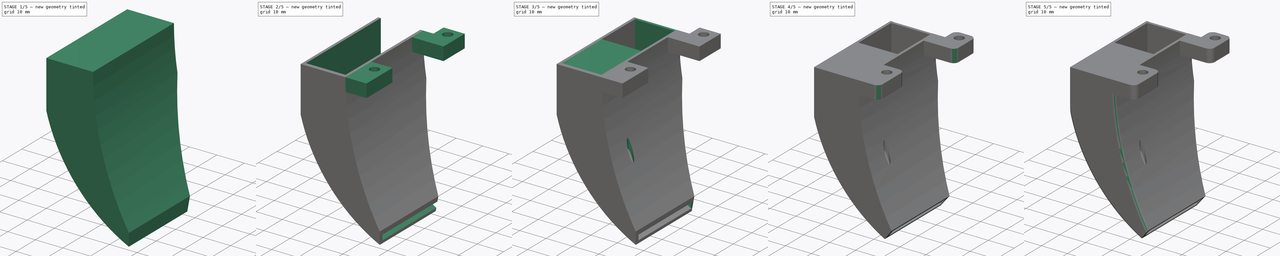
[diagram: build sequence overview — one tinted view per stage of 5, left to right]
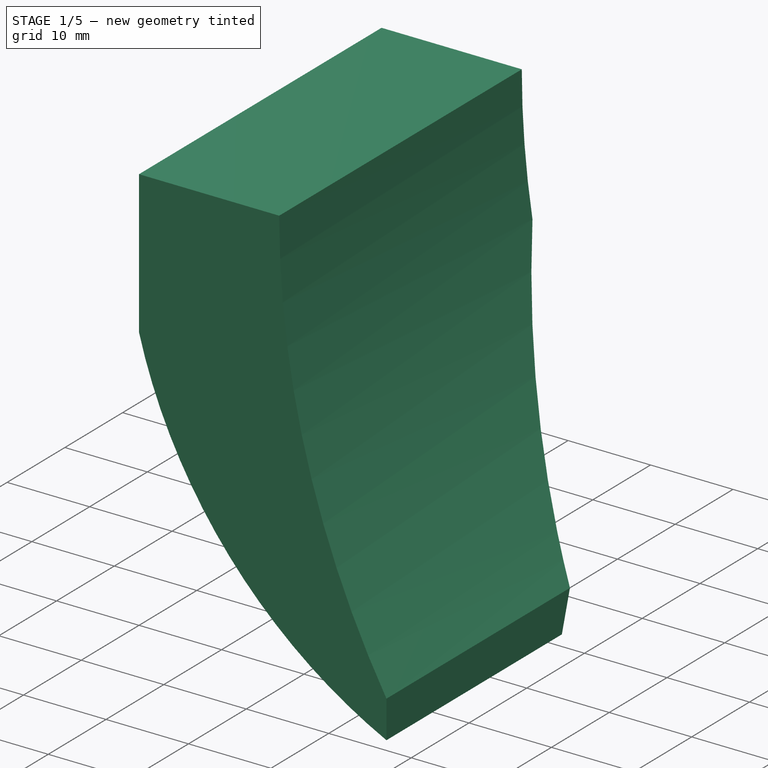
[diagram: stage 1 of 5 — iso view after this stage's code; geometry added in this stage tinted green]
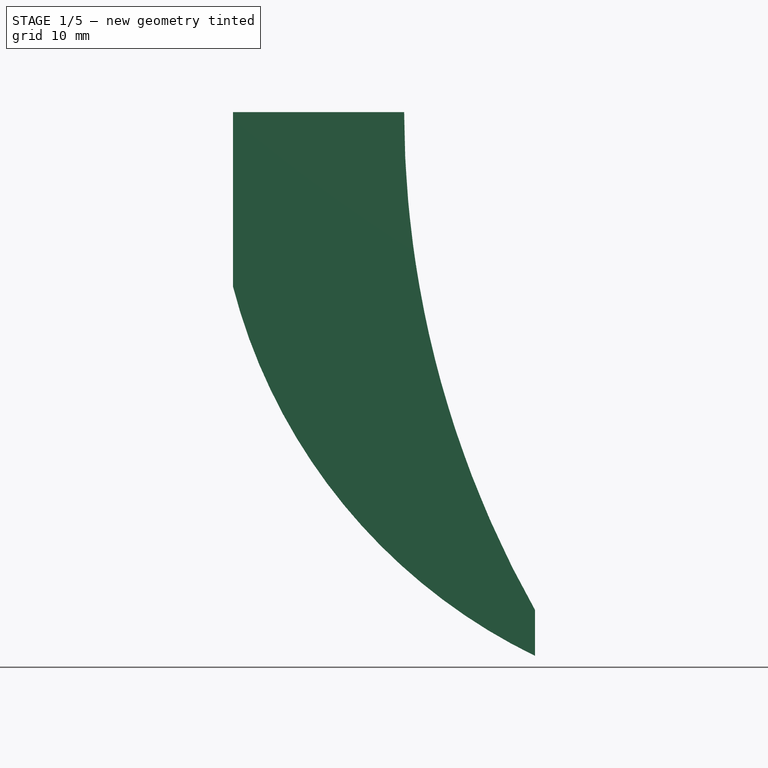
[diagram: stage 1 of 5 — front view after this stage's code; geometry added in this stage tinted green]
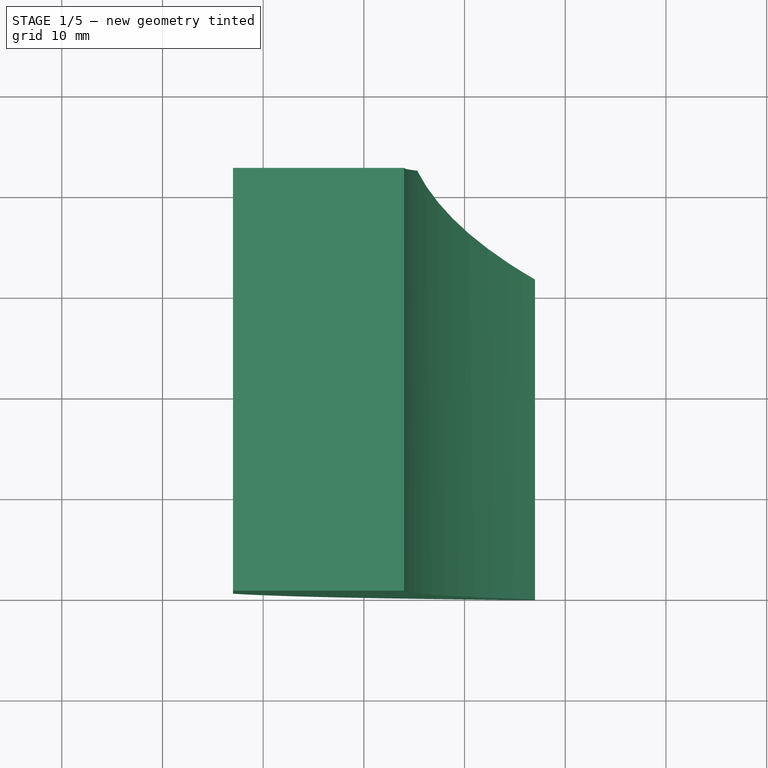
[diagram: stage 1 of 5 — top view after this stage's code; geometry added in this stage tinted green]
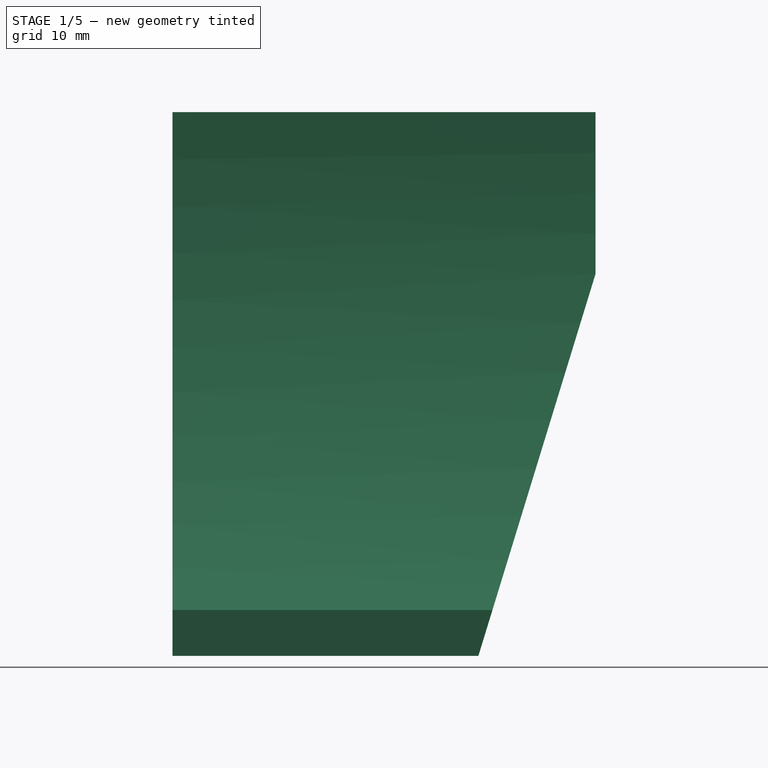
[diagram: stage 1 of 5 — right view after this stage's code; geometry added in this stage tinted green]
FCSTD DOCUMENT  (FreeCAD 0.19R)
Label: FanDuctVolcano
License: All rights reserved
LicenseURL: http://en.wikipedia.org/wiki/All_rights_reserved
objects: Sketcher::SketchObject×16, PartDesign::Pocket×8, PartDesign::Pad×7, PartDesign::Fillet×6, PartDesign::Chamfer×1, PartDesign::Body×1
note: 61 computed .brp shape members not serialized (recipe doc carries the construction recipe); baked Part::Feature solids carry a one-line shape summary decoded from their .brp

FEATURE [Sketcher::SketchObject] Sketch
  FullyConstrained = true
  MapMode = 5
  Support = -> [XY_Plane]
  sketch-geometry (19):
    g0: Circle CenterX=0 CenterY=-40 CenterZ=0 NormalX=0 NormalY=0 NormalZ=1 AngleXU=0 Radius=4.5
    g1: Circle CenterX=-22 CenterY=-40 CenterZ=0 NormalX=0 NormalY=0 NormalZ=1 AngleXU=0 Radius=2.5
    g2: Circle CenterX=-18 CenterY=-6 CenterZ=0 NormalX=0 NormalY=0 NormalZ=1 AngleXU=0 Radius=1.9
    g3: LineSegment StartX=-28 StartY=0 StartZ=0 EndX=0 EndY=0 EndZ=0
    g4: LineSegment StartX=0 StartY=0 StartZ=0 EndX=0 EndY=-50 EndZ=0
    g5: LineSegment StartX=0 StartY=-50 StartZ=0 EndX=-28 EndY=-50 EndZ=0
    g6: LineSegment StartX=-28 StartY=-50 StartZ=0 EndX=-28 EndY=0 EndZ=0
    g7: LineSegment StartX=-43 StartY=-8 StartZ=0 EndX=-28 EndY=-8 EndZ=0
    g8: LineSegment StartX=-28 StartY=-8 StartZ=0 EndX=-28 EndY=-28 EndZ=0
    g9: LineSegment StartX=-28 StartY=-28 StartZ=0 EndX=-43 EndY=-28 EndZ=0
    g10: LineSegment StartX=-43 StartY=-28 StartZ=0 EndX=-43 EndY=-8 EndZ=0
    g11: LineSegment StartX=-43 StartY=-8 StartZ=0 EndX=-13 EndY=-8 EndZ=0
    g12: LineSegment StartX=-13 StartY=-8 StartZ=0 EndX=-13 EndY=-50 EndZ=0
    g13: LineSegment StartX=-13 StartY=-50 StartZ=0 EndX=-43 EndY=-50 EndZ=0
    g14: LineSegment StartX=-43 StartY=-50 StartZ=0 EndX=-43 EndY=-8 EndZ=0
    g15: LineSegment StartX=-6 StartY=-27 StartZ=0 EndX=6 EndY=-27 EndZ=0
    g16: LineSegment StartX=6 StartY=-27 StartZ=0 EndX=6 EndY=-47 EndZ=0
    g17: LineSegment StartX=6 StartY=-47 StartZ=0 EndX=-6 EndY=-47 EndZ=0
    g18: LineSegment StartX=-6 StartY=-47 StartZ=0 EndX=-6 EndY=-27 EndZ=0
  constraints (55):
    c: Diameter(g0) = 9
    c: PointOnObject(g0,g-2)
    c: DistanceY(g0) = -40
    c: Diameter(g1) = 5
    c: DistanceX(g1) = -22
    c: DistanceY(g1) = -40
    c: Diameter(g2) = 3.8
    c: DistanceY(g2) = -6
    c: DistanceX(g2) = -18
    c: Coincident(g3,g4)
    c: Coincident(g4,g5)
    c: Coincident(g5,g6)
    c: Coincident(g6,g3)
    c: Horizontal(g3)
    c: Horizontal(g5)
    c: Vertical(g4)
    c: Vertical(g6)
    c: PointOnObject(g3,g-1)
    c: PointOnObject(g4,g-2)
    c: DistanceX(g3) = -28
    c: DistanceY(g4) = -50
    c: Coincident(g7,g8)
    c: Coincident(g8,g9)
    c: Coincident(g9,g10)
    c: Coincident(g10,g7)
    c: Horizontal(g7)
    c: Horizontal(g9)
    c: Vertical(g8)
    c: Vertical(g10)
    c: DistanceY(g7) = -8
    c: DistanceY(g8) = -28
    c: DistanceX(g7) = -43
    c: DistanceX(g7) = -28
    c: Coincident(g11,g12)
    c: Coincident(g12,g13)
    c: Coincident(g13,g14)
    c: Coincident(g14,g11)
    c: Horizontal(g11)
    c: Horizontal(g13)
    c: Vertical(g12)
    c: Vertical(g14)
    c: Coincident(g11,g7)
    c: PointOnObject(g12,g5)
    c: Coincident(g15,g16)
    c: Coincident(g16,g17)
    c: Coincident(g17,g18)
    c: Coincident(g18,g15)
    c: Horizontal(g15)
    c: Vertical(g16)
    c: Vertical(g18)
    c: Symmetric(g16,g17,g-2)
    c: Distance(g17) = 12
    c: Distance(g16) = 20
    c: DistanceY(g16,g0) = 7
    c: Distance(g15,g12) = 7
FEATURE [PartDesign::Pad] Pad
  Direction = (1,1,1)
  Length = 54
  Length2 = 100
  Profile = -> Sketch
  Reversed = true
  Type = 0
FEATURE [Sketcher::SketchObject] Sketch001
  ExternalGeometry = -> [Pad]
  FullyConstrained = true
  MapMode = 5
  Placement = pos=(0,-50,0) rot=(1,0,0;1.5708rad)
  Support = -> [Pad]
  sketch-geometry (6):
    g0: ArcOfCircle CenterX=11.7156 CenterY=-3.17874 CenterZ=0 NormalX=0 NormalY=0 NormalZ=1 AngleXU=0 Radius=56.5125 StartAngle=3.39444 EndAngle=4.25974
    g1: LineSegment StartX=-13 StartY=-54 StartZ=0 EndX=-82.3273 EndY=-71.6955 EndZ=0
    g2: LineSegment StartX=0 StartY=-55 StartZ=0 EndX=4.5 EndY=-50.8966 EndZ=0
    g3: LineSegment StartX=4.5 StartY=-50.8966 StartZ=0 EndX=-4.5 EndY=-50.8966 EndZ=0
    g4: LineSegment StartX=-4.5 StartY=-50.8966 StartZ=0 EndX=0 EndY=-55 EndZ=0
    g5: LineSegment StartX=-82.3273 StartY=-71.6955 StartZ=0 EndX=-43 EndY=-17.3161 EndZ=0
  constraints (17):
    c: Coincident(g0,g-4)
    c: Coincident(g1,g0)
    c: PointOnObject(g2,g-2)
    c: Coincident(g2,g3)
    c: Coincident(g3,g4)
    c: Coincident(g4,g2)
    c: Symmetric(g2,g3,g-2)
    c: Distance(g3) = 9
    c: Distance(g2) = 6.09
    c: DistanceY(g2) = -55
    c: Coincident(g5,g1)
    c: Coincident(g5,g0)
    c: PointOnObject(g0,g-3)
    c: DistanceX(g0) = 11.7156
    c: DistanceY(g0) = -3.17874
    c: Distance(g5) = 67.11
    c: Distance(g1) = 71.55
FEATURE [PartDesign::Pocket] Pocket
  BaseFeature = -> Pad
  Length = 5
  Length2 = 100
  Profile = -> Sketch001
  Type = 1
FEATURE [Sketcher::SketchObject] Sketch002
  FullyConstrained = true
  MapMode = 5
  Placement = pos=(-13,0,0) rot=(0.57735,0.57735,0.57735;2.0944rad)
  Support = -> [Pocket]
  sketch-geometry (8):
    g0: LineSegment StartX=-50 StartY=-31 StartZ=0 EndX=-30 EndY=-31 EndZ=0
    g1: LineSegment StartX=-30 StartY=-31 StartZ=0 EndX=-30 EndY=-43 EndZ=0
    g2: LineSegment StartX=-30 StartY=-43 StartZ=0 EndX=-50 EndY=-43 EndZ=0
    g3: LineSegment StartX=-50 StartY=-43 StartZ=0 EndX=-50 EndY=-31 EndZ=0
    g4: GeomPoint X=-40 Y=-55 Z=0
    g5: LineSegment StartX=0 StartY=10 StartZ=0 EndX=-23 EndY=-65 EndZ=0
    g6: LineSegment StartX=0 StartY=10 StartZ=0 EndX=20.1489 EndY=-57.2463 EndZ=0
    g7: LineSegment StartX=-23 StartY=-65 StartZ=0 EndX=20.1489 EndY=-57.2463 EndZ=0
  constraints (23):
    c: Coincident(g0,g1)
    c: Coincident(g1,g2)
    c: Coincident(g2,g3)
    c: Coincident(g3,g0)
    c: Horizontal(g0)
    c: Horizontal(g2)
    c: Vertical(g1)
    c: Vertical(g3)
    c: Distance(g0) = 20
    c: Distance(g1) = 12
    c: DistanceX(g1) = -30
    c: DistanceY(g1) = -43
    c: DistanceY(g4) = -55
    c: DistanceX(g4) = -40
    c: Coincident(g6,g5)
    c: Coincident(g7,g5)
    c: Coincident(g7,g6)
    c: PointOnObject(g5,g-2)
    c: DistanceY(g5) = 10
    c: DistanceX(g5) = -23
    c: DistanceY(g5) = -65
    c: Distance(g7) = 43.84
    c: Distance(g6) = 70.2
FEATURE [Sketcher::SketchObject] Sketch014
  FullyConstrained = false
  MapMode = 5
  Placement = pos=(-13,0,0) rot=(0.57735,0.57735,0.57735;2.0944rad)
  sketch-geometry (6):
    g0: LineSegment StartX=-52.8608 StartY=-52.5107 StartZ=0 EndX=-15.8278 EndY=-52.5107 EndZ=0
    g1: LineSegment StartX=-15.8278 StartY=-52.5107 StartZ=0 EndX=-15.8278 EndY=-61.1343 EndZ=0
    g2: LineSegment StartX=-15.8278 StartY=-61.1343 StartZ=0 EndX=-52.8608 EndY=-61.1343 EndZ=0
    g3: LineSegment StartX=-52.8608 StartY=-61.1343 StartZ=0 EndX=-52.8608 EndY=-52.5107 EndZ=0
    g4: LineSegment StartX=-20.0909 StartY=-51.1029 StartZ=0 EndX=-20.0909 EndY=-52.1029 EndZ=0
    g5: LineSegment StartX=-47 StartY=-52.1029 StartZ=0 EndX=-47 EndY=-51.1029 EndZ=0
  constraints (11):
    c: Coincident(g0,g1)
    c: Coincident(g1,g2)
    c: Coincident(g2,g3)
    c: Coincident(g3,g0)
    c: Horizontal(g0)
    c: Horizontal(g2)
    c: Vertical(g1)
    c: Vertical(g3)
    c: Vertical(g4)
    c: Vertical(g5)
    c: Distance(g4) = 1
FEATURE [PartDesign::Pocket] Pocket001
  BaseFeature = -> Pocket
  Length = 5
  Length2 = 100
  Profile = -> Sketch002
  Type = 1
FEATURE [Sketcher::SketchObject] Sketch004
  FullyConstrained = true
  MapMode = 5
  Placement = pos=(0,-50,0) rot=(1,0,0;1.5708rad)
  Support = -> [Pocket001]
  sketch-geometry (3):
    g0: ArcOfCircle CenterX=74.53 CenterY=0 CenterZ=0 NormalX=0 NormalY=0 NormalZ=1 AngleXU=0 Radius=100.53 StartAngle=3.14159 EndAngle=4.15685
    g1: LineSegment StartX=-26 StartY=1.23e-14 StartZ=0 EndX=74.53 EndY=0 EndZ=0
    g2: LineSegment StartX=21.51 StartY=-85.4117 StartZ=0 EndX=74.53 EndY=0 EndZ=0
  constraints (9):
    c: PointOnObject(g0,g-1)
    c: PointOnObject(g0,g-1)
    c: DistanceX(g0) = -26
    c: Coincident(g1,g0)
    c: Coincident(g1,g0)
    c: Coincident(g2,g0)
    c: Coincident(g2,g0)
    c: DistanceX(g0) = 21.51
    c: DistanceX(g0) = 74.53
FEATURE [PartDesign::Pocket] Pocket002
  BaseFeature = -> Pocket001
  Length = 5
  Length2 = 100
  Profile = -> Sketch004
  Type = 1
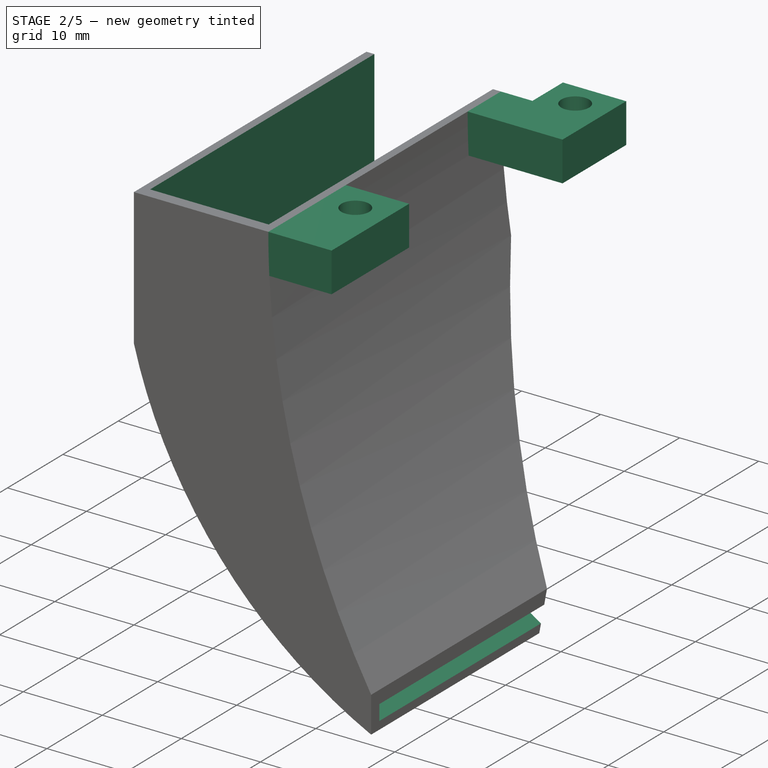
[diagram: stage 2 of 5 — iso view after this stage's code; geometry added in this stage tinted green]
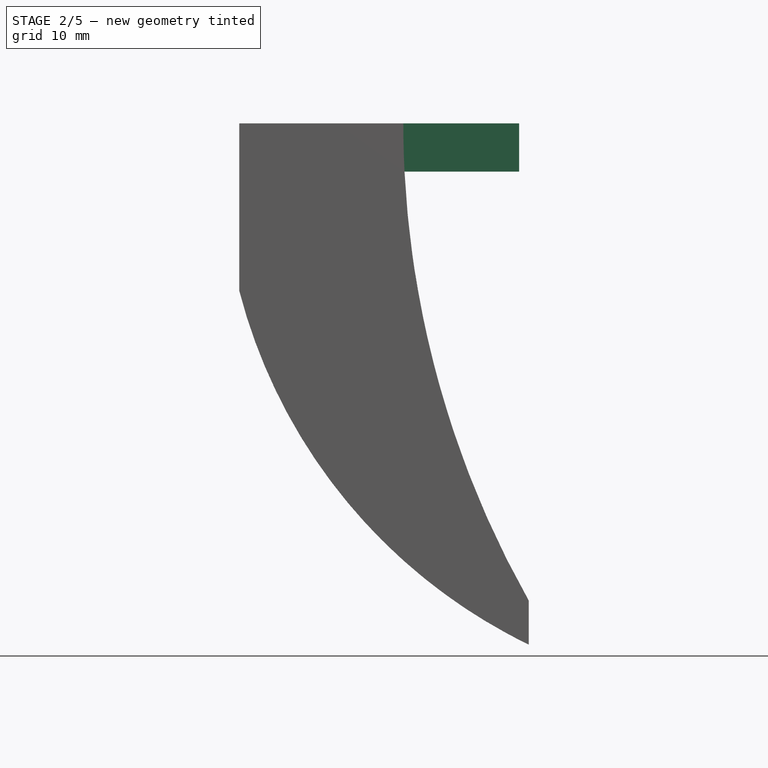
[diagram: stage 2 of 5 — front view after this stage's code; geometry added in this stage tinted green]
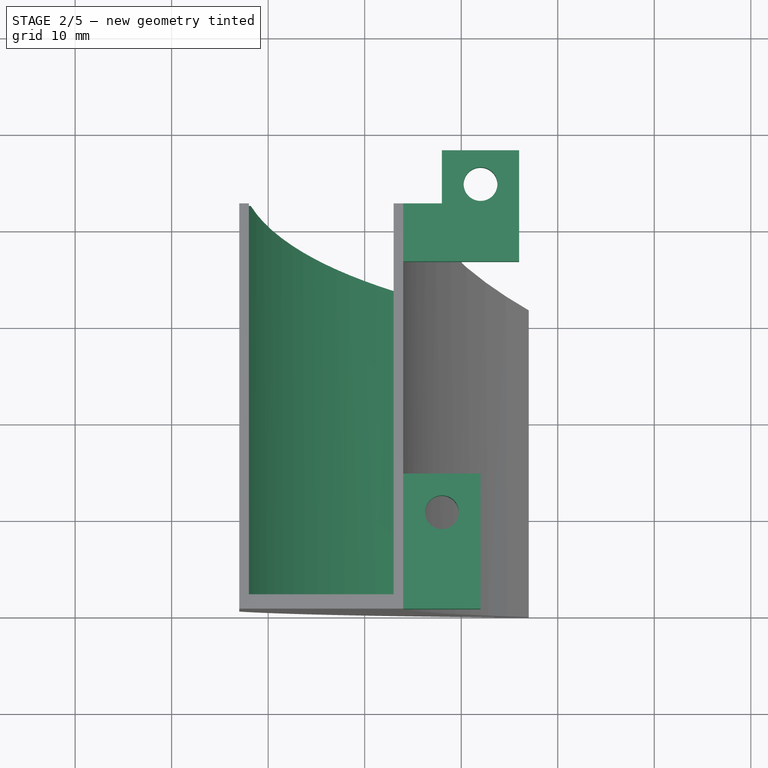
[diagram: stage 2 of 5 — top view after this stage's code; geometry added in this stage tinted green]
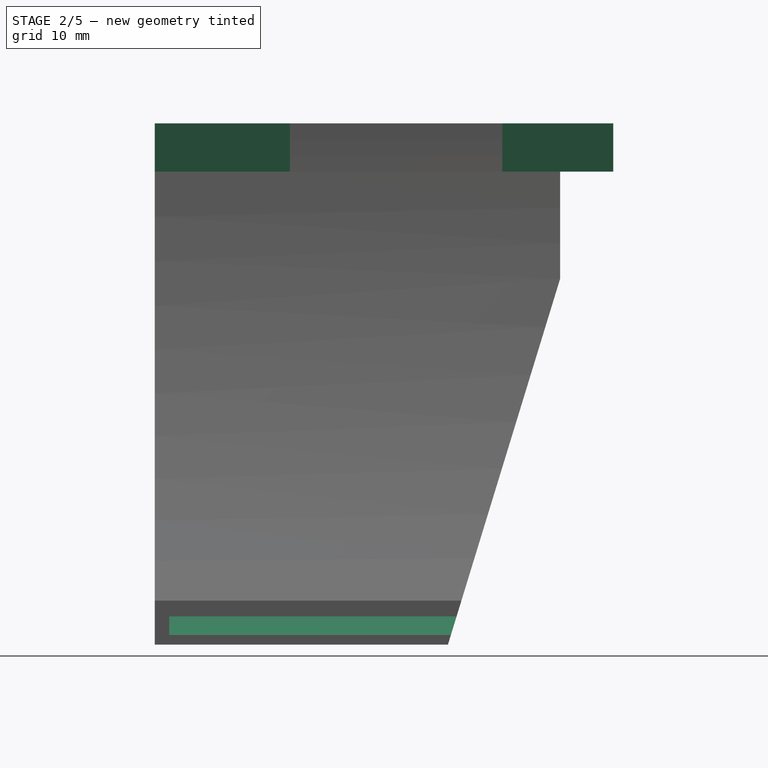
[diagram: stage 2 of 5 — right view after this stage's code; geometry added in this stage tinted green]
FEATURE [Sketcher::SketchObject] Sketch003
  FullyConstrained = false
  MapMode = 5
  Placement = pos=(0,-8,0) rot=(0,0.707107,0.707107;3.14159rad)
  Support = -> [Pocket002]
  sketch-geometry (8):
    g0: ArcOfCircle CenterX=-9.41574 CenterY=-5.83036 CenterZ=0 NormalX=0 NormalY=0 NormalZ=1 AngleXU=0 Radius=52.227 StartAngle=4.89367 EndAngle=6.1067
    g1: LineSegment StartX=42 StartY=3 StartZ=0 EndX=42 EndY=-15 EndZ=0
    g2: LineSegment StartX=42 StartY=3 StartZ=0 EndX=27 EndY=3 EndZ=0
    g3: LineSegment StartX=27 StartY=3 StartZ=0 EndX=27 EndY=-2.44e-14 EndZ=0
    g4: ArcOfCircle CenterX=-73.1763 CenterY=0 CenterZ=0 NormalX=0 NormalY=0 NormalZ=1 AngleXU=0 Radius=100.176 StartAngle=5.53141 EndAngle=6.28319
    g5: ArcOfCircle CenterX=-73.1763 CenterY=0 CenterZ=0 NormalX=0 NormalY=0 NormalZ=1 AngleXU=0 Radius=100.176 StartAngle=5.73709 EndAngle=6.28319
    g6: ArcOfCircle CenterX=-9.41574 CenterY=-5.83036 CenterZ=0 NormalX=0 NormalY=0 NormalZ=1 AngleXU=0 Radius=52.227 StartAngle=5.14394 EndAngle=6.1067
    g7: LineSegment StartX=12.43 StartY=-52.0274 StartZ=0 EndX=12.43 EndY=-53.269 EndZ=0
  constraints (23):
    c: PointOnObject(g0,g-2)
    c: Coincident(g1,g0)
    c: Vertical(g1)
    c: DistanceX(g1) = 42
    c: DistanceY(g1) = 3
    c: Coincident(g2,g1)
    c: Horizontal(g2)
    c: Coincident(g3,g2)
    c: Vertical(g3)
    c: DistanceX(g2) = 27
    c: Coincident(g4,g3)
    c: PointOnObject(g3,g-1)
    c: PointOnObject(g4,g-2)
    c: PointOnObject(g4,g-1)
    c: Coincident(g5,g4)
    c: Coincident(g5,g3)
    c: Coincident(g6,g0)
    c: Coincident(g6,g1)
    c: Coincident(g7,g5)
    c: Coincident(g7,g6)
    c: Vertical(g7)
    c: DistanceX(g5) = 12.43
    c: Distance(g1) = 18
FEATURE [PartDesign::Pocket] Pocket003
  BaseFeature = -> Pocket002
  Length = 40.5
  Length2 = 100
  Profile = -> Sketch003
  Type = 0
FEATURE [Sketcher::SketchObject] Sketch005
  FullyConstrained = false
  MapMode = 5
  Placement = pos=(0,-8,0) rot=(0,0.707107,0.707107;3.14159rad)
  Support = -> [Pocket003]
  sketch-geometry (4):
    g0: LineSegment StartX=14 StartY=0 StartZ=0 EndX=26.8847 EndY=0 EndZ=0
    g1: LineSegment StartX=26.8847 StartY=0 StartZ=0 EndX=26.8847 EndY=-5 EndZ=0
    g2: LineSegment StartX=26.8847 StartY=-5 StartZ=0 EndX=14 EndY=-5 EndZ=0
    g3: LineSegment StartX=14 StartY=-5 StartZ=0 EndX=14 EndY=0 EndZ=0
  constraints (11):
    c: Coincident(g0,g1)
    c: Coincident(g1,g2)
    c: Coincident(g2,g3)
    c: Coincident(g3,g0)
    c: Horizontal(g0)
    c: Horizontal(g2)
    c: Vertical(g1)
    c: Vertical(g3)
    c: PointOnObject(g0,g-1)
    c: DistanceX(g0) = 14
    c: Distance(g3) = 5
FEATURE [PartDesign::Pad] Pad001
  BaseFeature = -> Pocket003
  Direction = (1,1,1)
  Length = 6
  Length2 = 100
  Profile = -> Sketch005
  Reversed = true
  Type = 0
FEATURE [Sketcher::SketchObject] Sketch006
  FullyConstrained = true
  MapMode = 5
  Placement = pos=(0,-8,2.8e-15) rot=(0,0.707107,0.707107;3.14159rad)
  Support = -> [Pad001]
  sketch-geometry (4):
    g0: LineSegment StartX=14 StartY=0 StartZ=0 EndX=22 EndY=0 EndZ=0
    g1: LineSegment StartX=22 StartY=0 StartZ=0 EndX=22 EndY=-5 EndZ=0
    g2: LineSegment StartX=22 StartY=-5 StartZ=0 EndX=14 EndY=-5 EndZ=0
    g3: LineSegment StartX=14 StartY=-5 StartZ=0 EndX=14 EndY=0 EndZ=0
  constraints (12):
    c: Coincident(g0,g1)
    c: Coincident(g1,g2)
    c: Coincident(g2,g3)
    c: Coincident(g3,g0)
    c: Horizontal(g0)
    c: Horizontal(g2)
    c: Vertical(g1)
    c: Vertical(g3)
    c: PointOnObject(g0,g-1)
    c: DistanceX(g0) = 14
    c: Distance(g3) = 5
    c: Distance(g0) = 8
FEATURE [PartDesign::Pad] Pad002
  BaseFeature = -> Pad001
  Direction = (1,1,1)
  Length = 5.5
  Length2 = 100
  Profile = -> Sketch006
  Type = 0
FEATURE [Sketcher::SketchObject] Sketch007
  FullyConstrained = true
  MapMode = 5
  Placement = pos=(0,-50,0) rot=(1,0,0;1.5708rad)
  Support = -> [Pad002]
  sketch-geometry (4):
    g0: LineSegment StartX=-27 StartY=0 StartZ=0 EndX=-18 EndY=0 EndZ=0
    g1: LineSegment StartX=-18 StartY=0 StartZ=0 EndX=-18 EndY=-5 EndZ=0
    g2: LineSegment StartX=-18 StartY=-5 StartZ=0 EndX=-27 EndY=-5 EndZ=0
    g3: LineSegment StartX=-27 StartY=-5 StartZ=0 EndX=-27 EndY=0 EndZ=0
  constraints (12):
    c: Coincident(g0,g1)
    c: Coincident(g1,g2)
    c: Coincident(g2,g3)
    c: Coincident(g3,g0)
    c: Horizontal(g0)
    c: Horizontal(g2)
    c: Vertical(g1)
    c: Vertical(g3)
    c: DistanceX(g0) = -18
    c: PointOnObject(g0,g-1)
    c: Distance(g1) = 5
    c: Distance(g0) = 9
FEATURE [PartDesign::Pad] Pad003
  BaseFeature = -> Pad002
  Direction = (1,1,1)
  Length = 14
  Length2 = 100
  Profile = -> Sketch007
  Reversed = true
  Type = 0
FEATURE [Sketcher::SketchObject] Sketch009
  FullyConstrained = true
  MapMode = 5
  Placement = pos=(0,0,-1.11e-14) rot=(0,0,1;0rad)
  Support = -> [Pad003]
  sketch-geometry (2):
    g0: Circle CenterX=-18 CenterY=-6 CenterZ=0 NormalX=0 NormalY=0 NormalZ=1 AngleXU=0 Radius=1.75
    g1: Circle CenterX=-22 CenterY=-40 CenterZ=0 NormalX=0 NormalY=0 NormalZ=1 AngleXU=0 Radius=1.75
  constraints (6):
    c: Diameter(g1) = 3.5
    c: Equal(g1,g0)
    c: DistanceY(g1) = -40
    c: DistanceX(g1) = -22
    c: DistanceY(g0) = -6
    c: DistanceX(g0) = -18
FEATURE [PartDesign::Pocket] Pocket004
  BaseFeature = -> Pad003
  Length = 6
  Length2 = 100
  Profile = -> Sketch009
  Type = 0
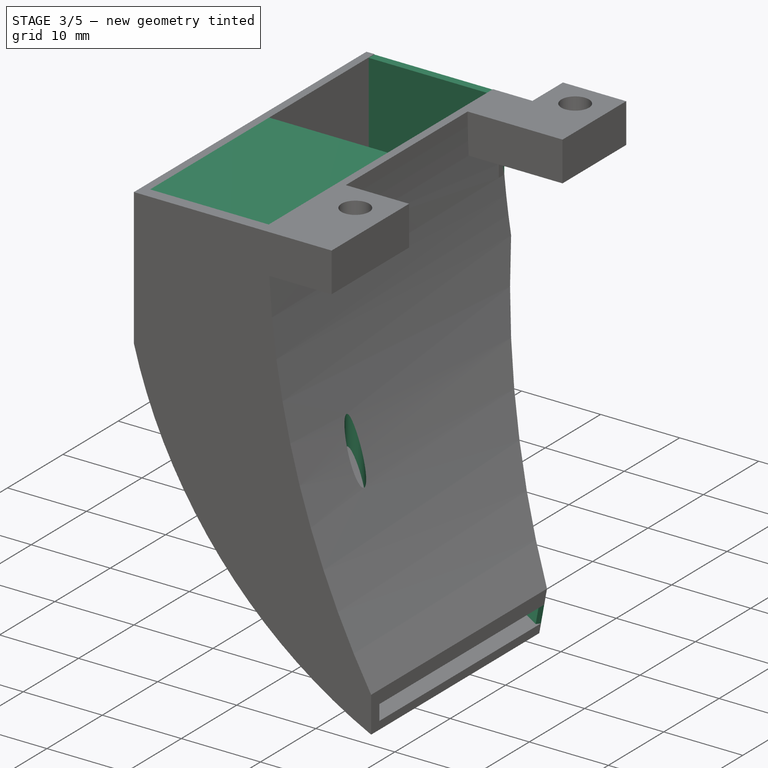
[diagram: stage 3 of 5 — iso view after this stage's code; geometry added in this stage tinted green]
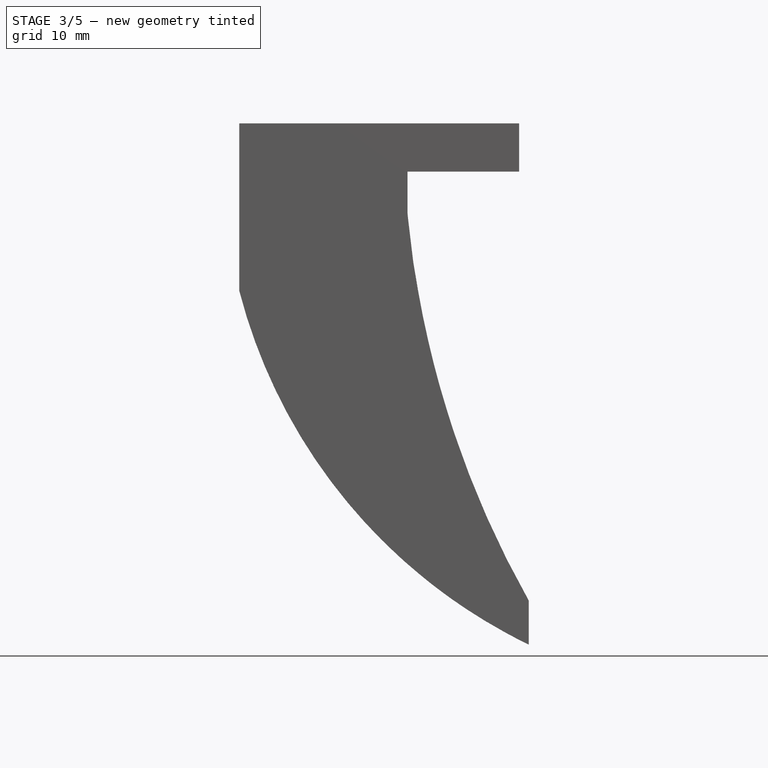
[diagram: stage 3 of 5 — front view after this stage's code; geometry added in this stage tinted green]
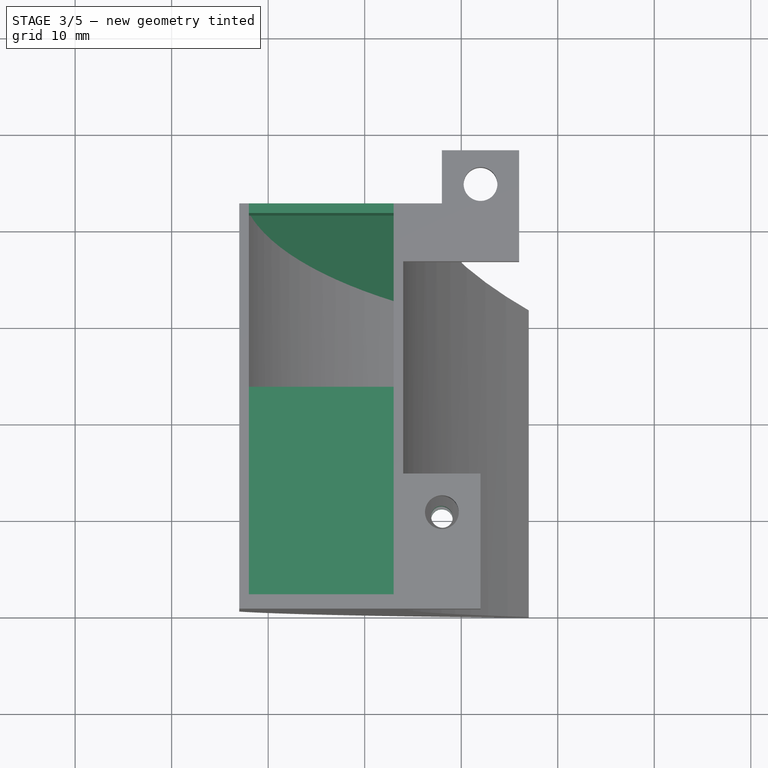
[diagram: stage 3 of 5 — top view after this stage's code; geometry added in this stage tinted green]
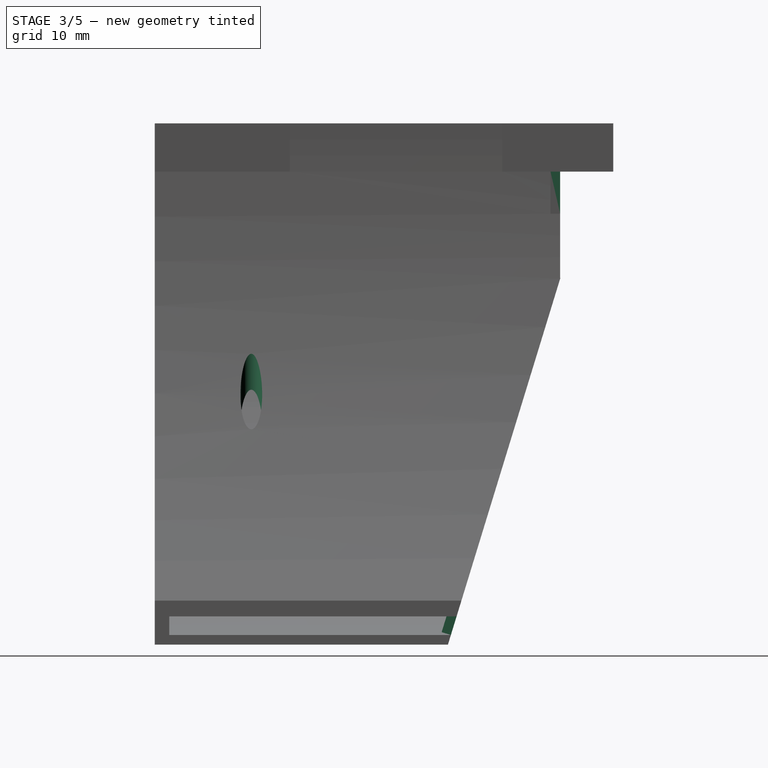
[diagram: stage 3 of 5 — right view after this stage's code; geometry added in this stage tinted green]
FEATURE [Sketcher::SketchObject] Sketch010
  FullyConstrained = false
  MapMode = 5
  Support = -> [Pocket004]
  sketch-geometry (4):
    g0: LineSegment StartX=-43 StartY=-27 StartZ=0 EndX=-26.8847 EndY=-27 EndZ=0
    g1: LineSegment StartX=-26.8847 StartY=-27 StartZ=0 EndX=-26.8847 EndY=-50 EndZ=0
    g2: LineSegment StartX=-26.8847 StartY=-50 StartZ=0 EndX=-43 EndY=-50 EndZ=0
    g3: LineSegment StartX=-43 StartY=-50 StartZ=0 EndX=-43 EndY=-27 EndZ=0
  constraints (7):
    c: Coincident(g1,g2)
    c: Coincident(g2,g3)
    c: Coincident(g3,g0)
    c: Horizontal(g0)
    c: Horizontal(g2)
    c: Vertical(g1)
    c: Coincident(g1,g0)
FEATURE [PartDesign::Pad] Pad004
  BaseFeature = -> Pocket004
  Direction = (1,1,1)
  Length = 1
  Length2 = 100
  Profile = -> Sketch010
  Reversed = true
  Type = 0
FEATURE [Sketcher::SketchObject] Sketch011
  FullyConstrained = false
  MapMode = 5
  Placement = pos=(0,-8,0) rot=(0,0.707107,0.707107;3.14159rad)
  Support = -> [Pad004]
  sketch-geometry (4):
    g0: LineSegment StartX=25.5627 StartY=-0.05258 StartZ=0 EndX=42.2216 EndY=-0.05258 EndZ=0
    g1: LineSegment StartX=42.2216 StartY=-0.05258 StartZ=0 EndX=42.2216 EndY=-16.1242 EndZ=0
    g2: LineSegment StartX=42.2216 StartY=-16.1242 StartZ=0 EndX=25.5627 EndY=-16.1242 EndZ=0
    g3: LineSegment StartX=25.5627 StartY=-16.1242 StartZ=0 EndX=25.5627 EndY=-0.05258 EndZ=0
  constraints (8):
    c: Coincident(g0,g1)
    c: Coincident(g1,g2)
    c: Coincident(g2,g3)
    c: Coincident(g3,g0)
    c: Horizontal(g0)
    c: Horizontal(g2)
    c: Vertical(g1)
    c: Vertical(g3)
FEATURE [PartDesign::Pad] Pad005
  BaseFeature = -> Pad004
  Direction = (1,1,1)
  Length = 1
  Length2 = 100
  Profile = -> Sketch011
  Reversed = true
  Type = 0
FEATURE [Sketcher::SketchObject] Sketch013
  ExternalGeometry = -> [Pad005]
  FullyConstrained = true
  MapMode = 5
  Placement = pos=(0,-2.80305,0.859604) rot=(0,0.804111,0.594479;3.14159rad)
  Support = -> [Pad005]
  sketch-geometry (4):
    g0: LineSegment StartX=42.3335 StartY=-17.6579 StartZ=0 EndX=25.3192 EndY=-17.6579 EndZ=0
    g1: ArcOfCircle CenterX=-10.1637 CenterY=-8.30848 CenterZ=0 NormalX=0 NormalY=0 NormalZ=1 AngleXU=0 Radius=53.3233 StartAngle=5.16176 EndAngle=6.10694
    g2: ArcOfCircle CenterX=-83.9739 CenterY=-1.34081 CenterZ=0 NormalX=0 NormalY=0 NormalZ=1 AngleXU=0 Radius=110.504 StartAngle=5.78313 EndAngle=6.13498
    g3: LineSegment StartX=13 StartY=-54.3247 StartZ=0 EndX=13 EndY=-56.3377 EndZ=0
  constraints (12):
    c: Horizontal(g0)
    c: Coincident(g1,g0)
    c: Coincident(g2,g0)
    c: Coincident(g3,g2)
    c: Coincident(g3,g1)
    c: DistanceX(g0) = 42.3335
    c: DistanceY(g0) = -17.6579
    c: DistanceX(g0) = 25.3192
    c: Coincident(g2,g-4)
    c: Coincident(g1,g-5)
    c: DistanceX(g2) = -83.9739
    c: DistanceX(g1) = -10.1637
FEATURE [PartDesign::Pad] Pad006
  BaseFeature = -> Pad005
  Direction = (1,1,1)
  Length = 1
  Length2 = 100
  Profile = -> Sketch013
  Reversed = true
  Type = 0
FEATURE [Sketcher::SketchObject] Sketch015
  FullyConstrained = false
  MapMode = 5
  Placement = pos=(0,0,-1.11e-14) rot=(0,0,1;0rad)
  Support = -> [Pad006]
  sketch-geometry (1):
    g0: Circle CenterX=-22 CenterY=-40 CenterZ=0 NormalX=0 NormalY=0 NormalZ=1 AngleXU=0 Radius=1.125
  constraints (1):
    c: Diameter(g0) = 2.25
FEATURE [PartDesign::Pocket] Pocket005
  BaseFeature = -> Pad006
  Length = 5
  Length2 = 100
  Profile = -> Sketch015
  Type = 1
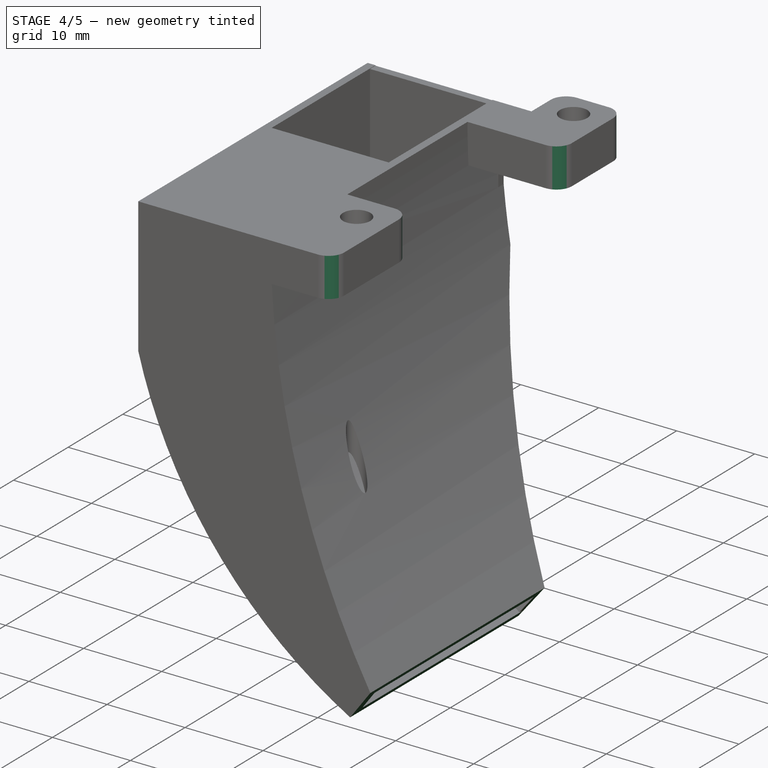
[diagram: stage 4 of 5 — iso view after this stage's code; geometry added in this stage tinted green]
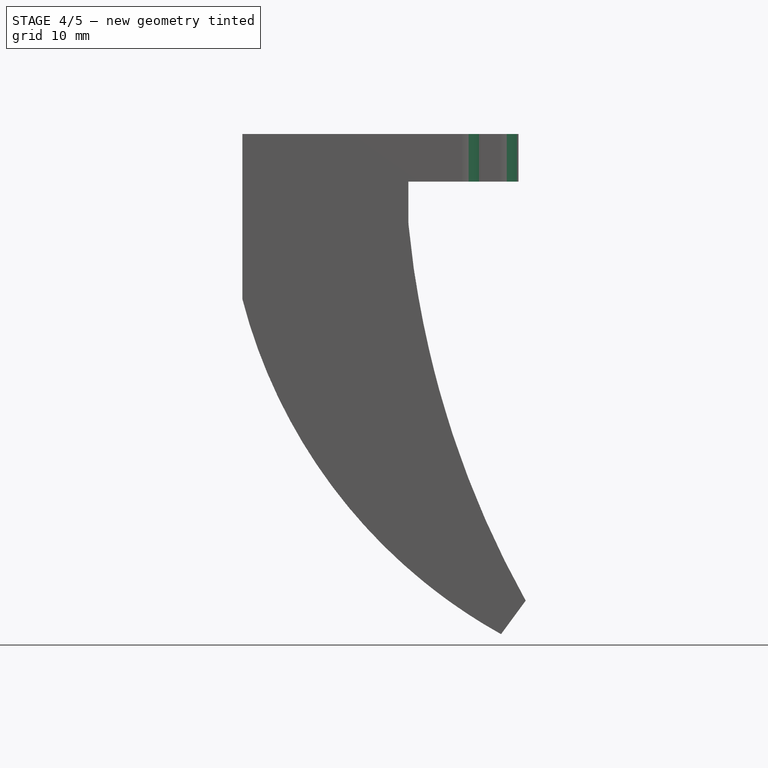
[diagram: stage 4 of 5 — front view after this stage's code; geometry added in this stage tinted green]
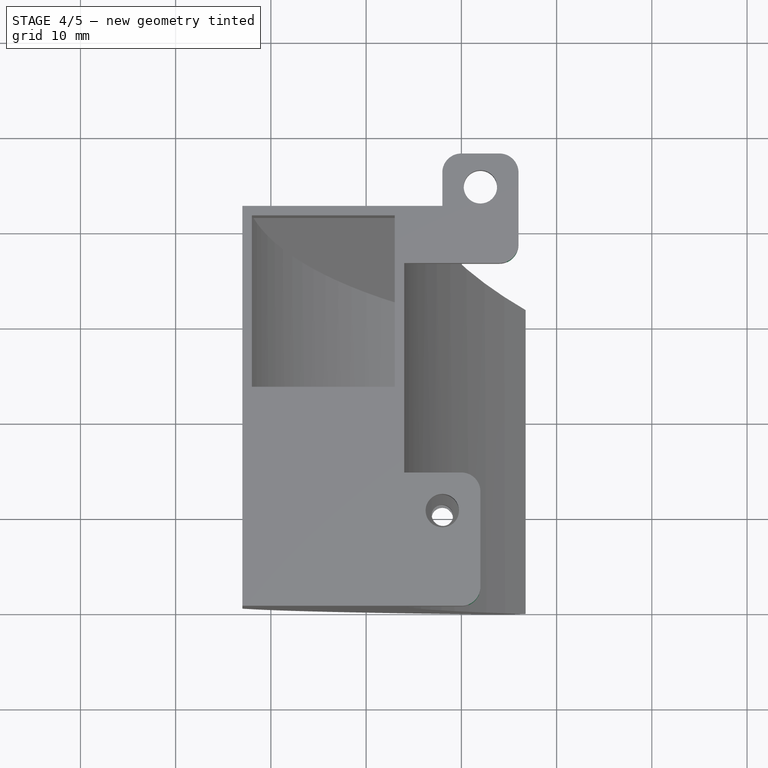
[diagram: stage 4 of 5 — top view after this stage's code; geometry added in this stage tinted green]
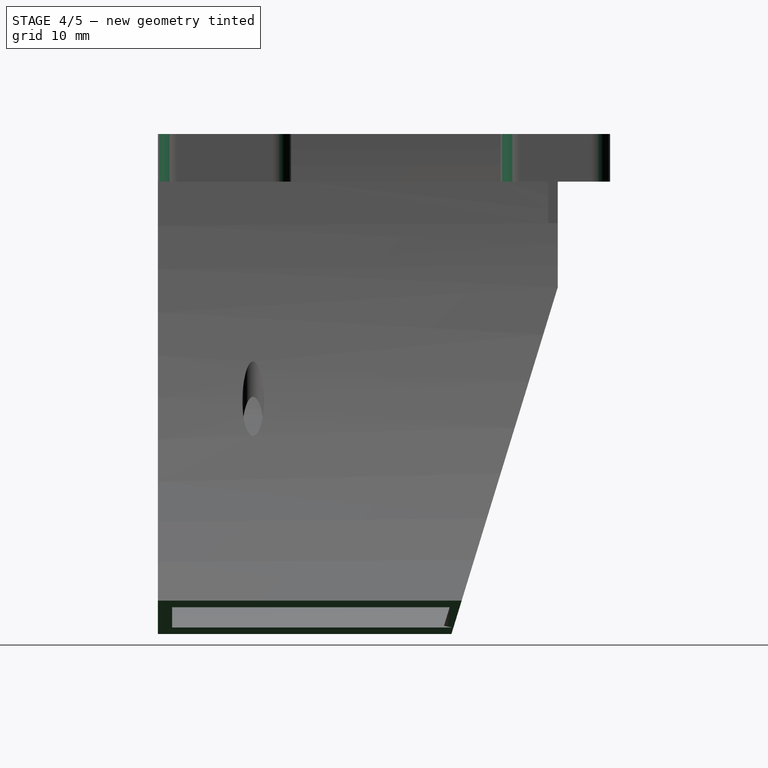
[diagram: stage 4 of 5 — right view after this stage's code; geometry added in this stage tinted green]
FEATURE [PartDesign::Chamfer] Chamfer
  Angle = 45
  Base = -> Pocket005 [Edge20]
  BaseFeature = -> Pocket005
  ChamferType = 0
  FlipDirection = false
  Size = 1.4
  Size2 = 1
  SupportTransform = false
FEATURE [PartDesign::Fillet] Fillet
  Base = -> Chamfer [Edge2]
  BaseFeature = -> Chamfer
  Radius = 0.5
  SupportTransform = false
FEATURE [PartDesign::Pocket] Pocket006
  BaseFeature = -> Fillet
  Length = 5
  Length2 = 100
  Profile = -> Sketch014
  Type = 0
FEATURE [Sketcher::SketchObject] Sketch016
  FullyConstrained = true
  MapMode = 5
  Placement = pos=(5e-16,-2.80305,0.859604) rot=(0,0.804111,0.594479;3.14159rad)
  Support = -> [Pocket006]
FEATURE [Sketcher::SketchObject] Sketch017
  FullyConstrained = false
  MapMode = 5
  Placement = pos=(0,-50,0) rot=(1,0,0;1.5708rad)
  Support = -> [Pocket006]
  sketch-geometry (3):
    g0: LineSegment StartX=-11.0537 StartY=-46.0219 StartZ=0 EndX=-17.304 EndY=-54.5239 EndZ=0
    g1: LineSegment StartX=-17.304 StartY=-54.5239 StartZ=0 EndX=-5.30801 EndY=-55.9215 EndZ=0
    g2: LineSegment StartX=-5.30801 StartY=-55.9215 StartZ=0 EndX=-11.0537 EndY=-46.0219 EndZ=0
  constraints (3):
    c: Coincident(g0,g1)
    c: Coincident(g1,g2)
    c: Coincident(g2,g0)
FEATURE [PartDesign::Pocket] Pocket007
  BaseFeature = -> Pocket006
  Length = 5
  Length2 = 100
  Profile = -> Sketch017
  Type = 1
FEATURE [PartDesign::Fillet] Fillet001
  Base = -> Pocket007 [Edge163,Edge208,Edge209,Edge160,Edge202]
  BaseFeature = -> Pocket007
  Radius = 2
  SupportTransform = false
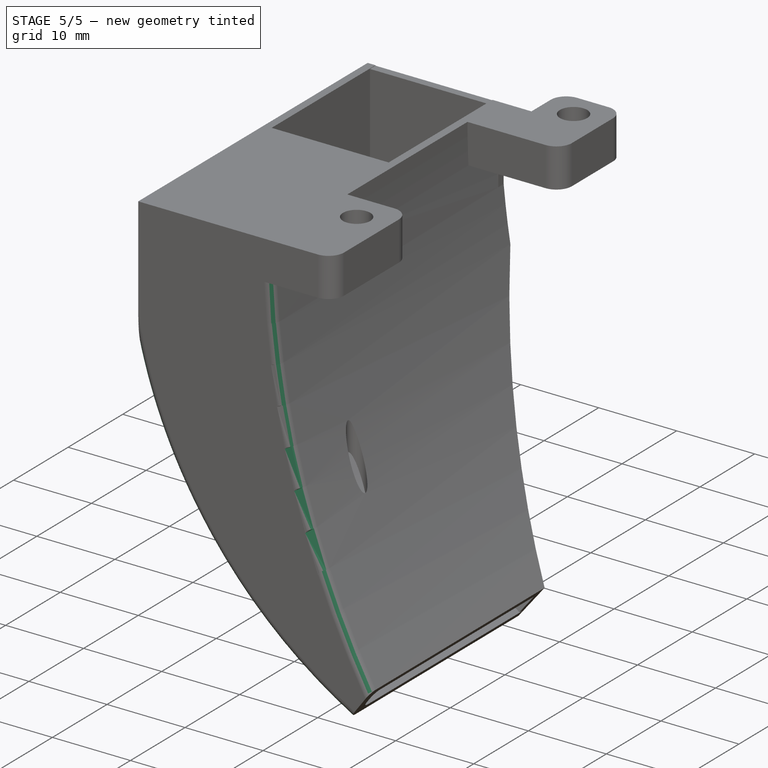
[diagram: stage 5 of 5 — iso view after this stage's code; geometry added in this stage tinted green]
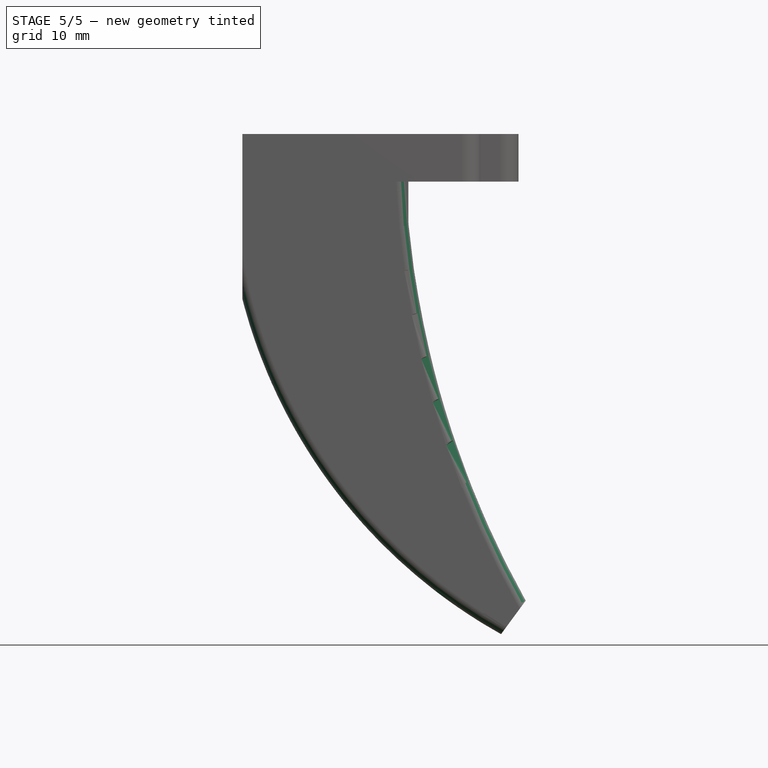
[diagram: stage 5 of 5 — front view after this stage's code; geometry added in this stage tinted green]
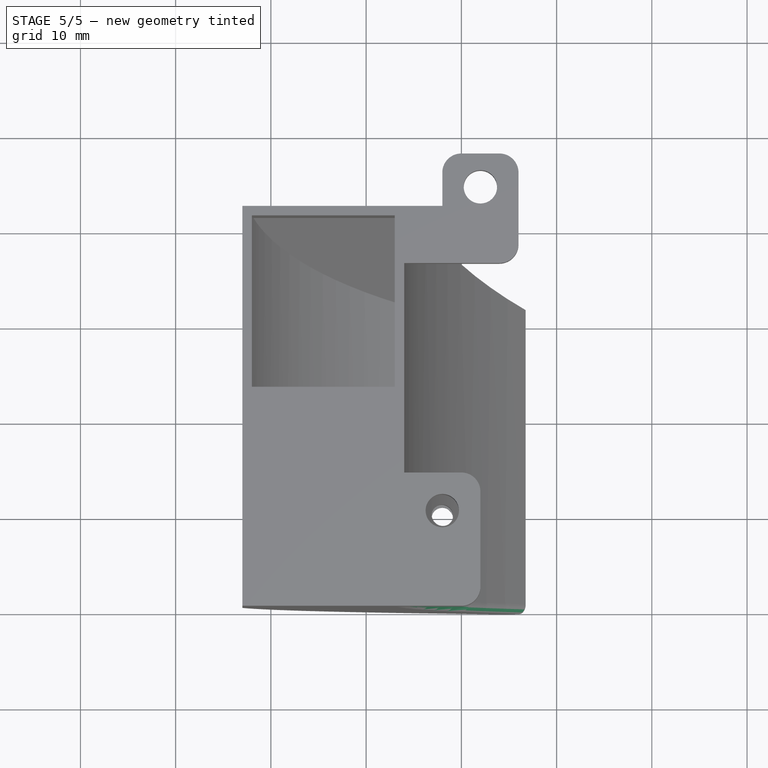
[diagram: stage 5 of 5 — top view after this stage's code; geometry added in this stage tinted green]
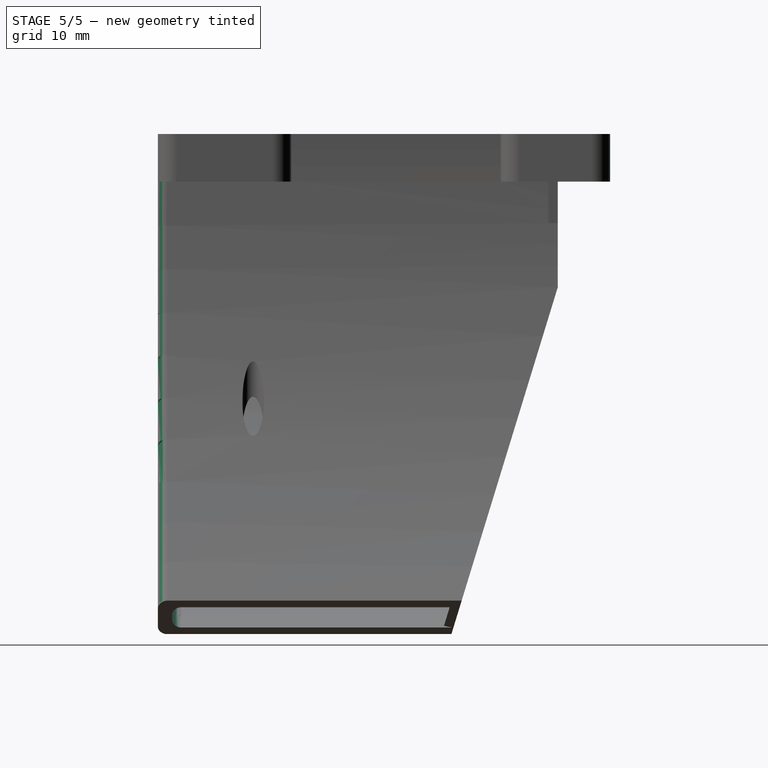
[diagram: stage 5 of 5 — right view after this stage's code; geometry added in this stage tinted green]
FEATURE [PartDesign::Fillet] Fillet002
  Base = -> Fillet001 [Edge59]
  BaseFeature = -> Fillet001
  Radius = 1
  SupportTransform = false
FEATURE [PartDesign::Fillet] Fillet003
  Base = -> Fillet002 [Edge6]
  BaseFeature = -> Fillet002
  Radius = 1
  SupportTransform = false
FEATURE [PartDesign::Fillet] Fillet004
  Base = -> Fillet003 [Edge85]
  BaseFeature = -> Fillet003
  Radius = 1
  SupportTransform = false
FEATURE [PartDesign::Fillet] Fillet005
  Base = -> Fillet004 [Edge18]
  BaseFeature = -> Fillet004
  Radius = 1
  SupportTransform = false
FEATURE [PartDesign::Body] Body
  Group = -> [Sketch,Pad,Sketch001,Pocket,Sketch002,Sketch003,Sketch004,Sketch005,Sketch006,Sketch007,Sketch009,Sketch010,Sketch011,Sketch013,Sketch014,Sketch015,Pocket001,Pocket002,Pocket003,Pad001,Pad002,Pad003,Pocket004,Pad004,Pad005,Pad006,Pocket005,Chamfer,Fillet,Pocket006,Sketch016,Sketch017,Pocket007,Fillet001,Fillet002,Fillet003,Fillet004,Fillet005]
  Origin = -> Origin
  Tip = -> Fillet005
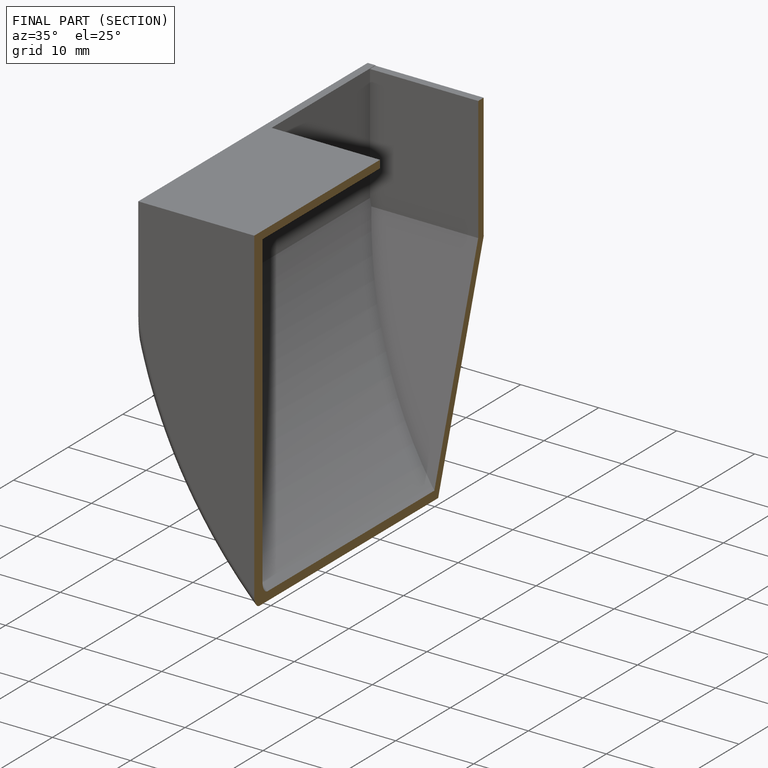
[diagram: finished part — half-section view (interior)]
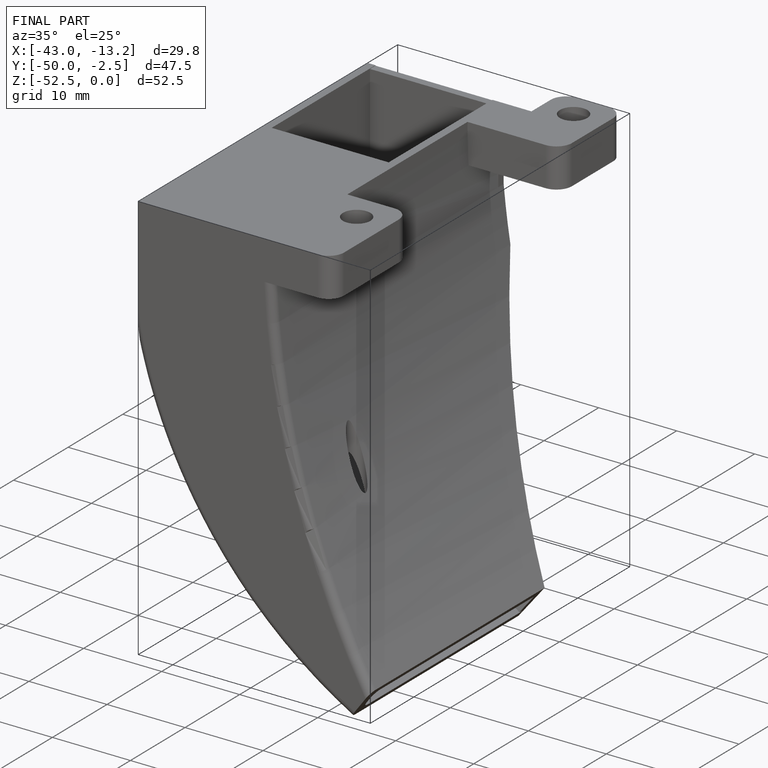
[diagram: finished part — iso view with bounding-box wireframe]
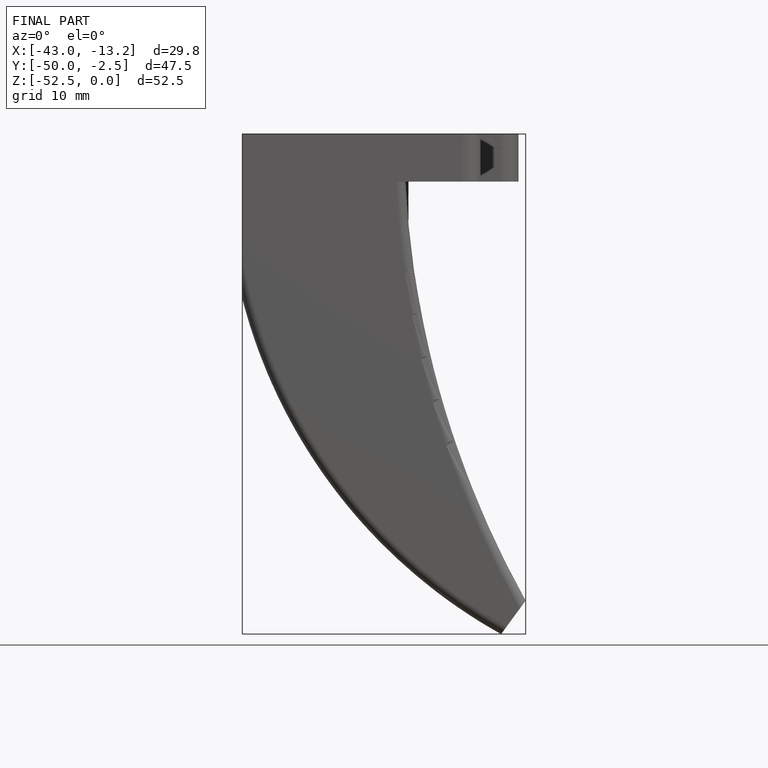
[diagram: finished part — front view with bounding-box wireframe]
